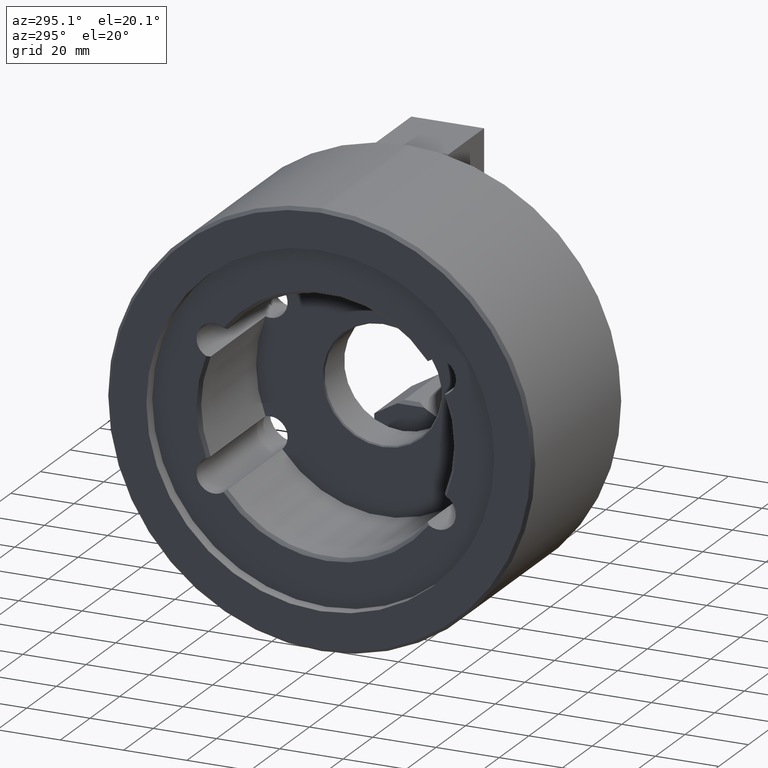
[diagram: clean part render]
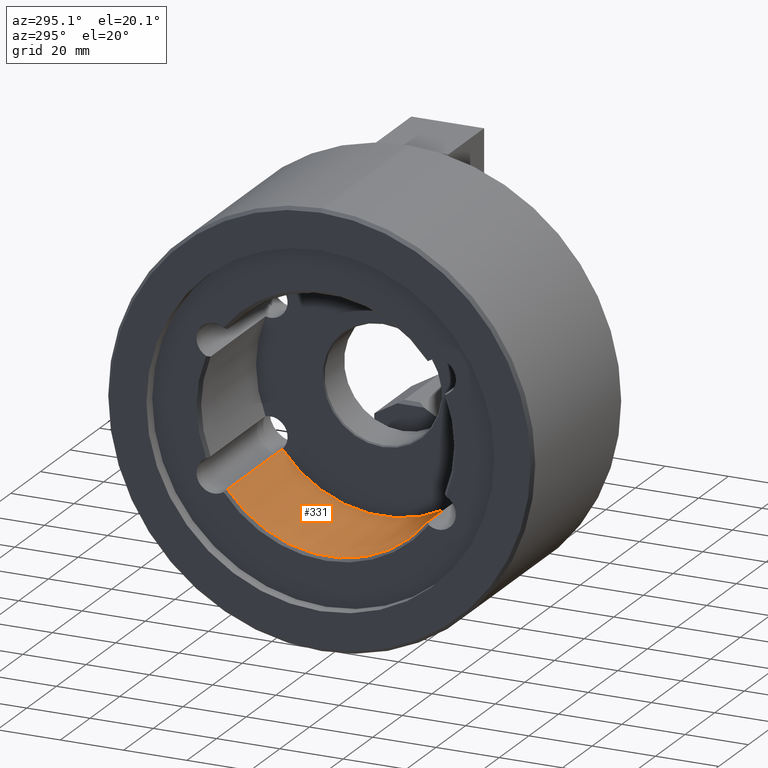
[diagram: same view with one face highlighted and labeled with its STEP entity id]
A machine part, auxiliary view. The second image highlights one B-rep face of the part: STEP entity #331.
In plain terms, the highlighted cylindrical surface (partial cylindrical patch) has radius 40 mm, axis along (1, -0, 0).
Its self-contained STEP definition (entity closure, byte-faithful):
#331 = ADVANCED_FACE( '', ( #813 ), #814, .F. );
#813 = FACE_OUTER_BOUND( '', #1492, .T. );
#814 = CYLINDRICAL_SURFACE( '', #1493, 40.0000000000000 );
#1492 = EDGE_LOOP( '', ( #2461, #2462, #2463, #2464 ) );
#1493 = AXIS2_PLACEMENT_3D( '', #2465, #2466, #2467 );
#2461 = ORIENTED_EDGE( '', *, *, #4196, .F. );
#2462 = ORIENTED_EDGE( '', *, *, #4197, .F. );
#2463 = ORIENTED_EDGE( '', *, *, #4198, .T. );
#2464 = ORIENTED_EDGE( '', *, *, #4199, .F. );
#2465 = CARTESIAN_POINT( '', ( -60.0075000000000, 0.000000000000000, -1.54074395550979E-030 ) );
#2466 = DIRECTION( '', ( 1.00000000000000, -0.000000000000000, 1.28379282215539E-032 ) );
#2467 = DIRECTION( '', ( -1.28379282215539E-032, 0.000000000000000, 1.00000000000000 ) );
#4196 = EDGE_CURVE( '', #4968, #4969, #4970, .T. );
#4197 = EDGE_CURVE( '', #4971, #4968, #4972, .F. );
#4198 = EDGE_CURVE( '', #4971, #4973, #4974, .T. );
#4199 = EDGE_CURVE( '', #4969, #4973, #4975, .T. );
#4968 = VERTEX_POINT( '', #6335 );
#4969 = VERTEX_POINT( '', #6336 );
#4970 = CIRCLE( '', #6337, 40.0000000000000 );
#4971 = VERTEX_POINT( '', #6338 );
#4972 = LINE( '', #6339, #6340 );
#4973 = VERTEX_POINT( '', #6341 );
#4974 = CIRCLE( '', #6342, 40.0000000000000 );
#4975 = LINE( '', #6343, #6344 );
#6335 = CARTESIAN_POINT( '', ( 12.0014536930733, 31.6670776687398, -24.4375979163665 ) );
#6336 = CARTESIAN_POINT( '', ( 12.0014536930733, -31.6670776687398, -24.4375979163665 ) );
#6337 = AXIS2_PLACEMENT_3D( '', #7831, #7832, #7833 );
#6338 = CARTESIAN_POINT( '', ( -25.0000000000000, 31.6670776687398, -24.4375979163665 ) );
#6339 = CARTESIAN_POINT( '', ( -3.49854630692668, 31.6670776687398, -24.4375979163665 ) );
#6340 = VECTOR( '', #7834, 1000.00000000000 );
#6341 = CARTESIAN_POINT( '', ( -25.0000000000000, -31.6670776687398, -24.4375979163665 ) );
#6342 = AXIS2_PLACEMENT_3D( '', #7835, #7836, #7837 );
#6343 = CARTESIAN_POINT( '', ( -3.49854630692668, -31.6670776687398, -24.4375979163665 ) );
#6344 = VECTOR( '', #7838, 1000.00000000000 );
#7831 = CARTESIAN_POINT( '', ( 12.0014536930733, 0.000000000000000, -6.16298176688916E-031 ) );
#7832 = DIRECTION( '', ( -1.00000000000000, 0.000000000000000, -1.28379282215539E-032 ) );
#7833 = DIRECTION( '', ( -1.28379282215539E-032, 0.000000000000000, 1.00000000000000 ) );
#7834 = DIRECTION( '', ( -1.00000000000000, 0.000000000000000, -1.28379282215539E-032 ) );
#7835 = CARTESIAN_POINT( '', ( -25.0000000000000, 0.000000000000000, -1.09132018329374E-030 ) );
#7836 = DIRECTION( '', ( -1.00000000000000, 0.000000000000000, -1.28379282215539E-032 ) );
#7837 = DIRECTION( '', ( -1.28379282215539E-032, 0.000000000000000, 1.00000000000000 ) );
#7838 = DIRECTION( '', ( -1.00000000000000, 3.03858167864313E-064, -1.28379282215539E-032 ) );